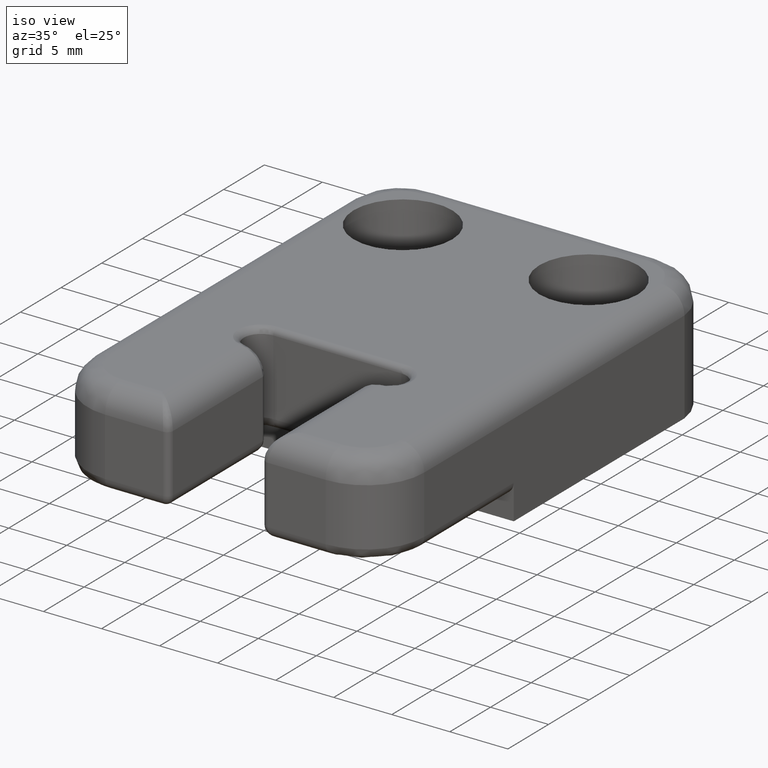
[diagram: clean part render]
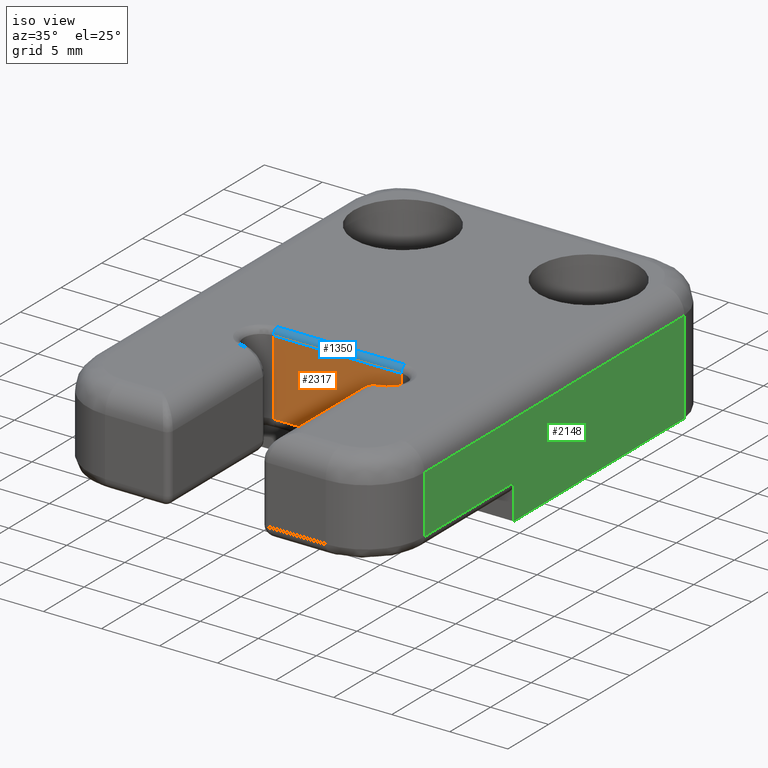
[diagram: same view with three faces highlighted in distinct colors, each labeled with its STEP entity id]
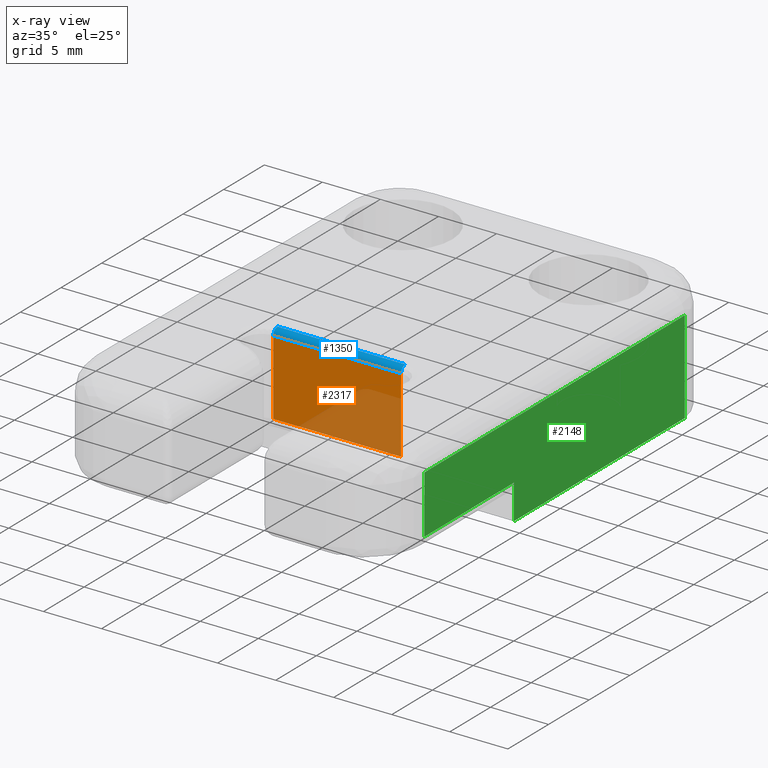
[diagram: x-ray of the same camera — body ghosted, the three highlighted faces saturated]
A machine part, iso view with three faces highlighted in distinct colors.
The next image is the same camera in x-ray (body ghosted, the three faces saturated) — at least one of them is partly hidden behind the body in this view.
Their STEP definitions:

[orange] entity #2317 — the highlighted planar face has unit normal (0, -1, 0).
#1306=CARTESIAN_POINT('',(5.499999999994543,-1.003970467848149,9.500000000000000));
#1307=VERTEX_POINT('',#1306);
#1333=CARTESIAN_POINT('',(-5.500000000004548,-1.003970467848262,9.500000000000000));
#1334=VERTEX_POINT('',#1333);
#1342=CARTESIAN_POINT('',(-5.500000000004548,-1.003970467848262,9.500000000000000));
#1343=DIRECTION('',(1.0,0.0,0.0));
#1344=VECTOR('',#1343,10.999999999999091);
#1345=LINE('',#1342,#1344);
#1346=EDGE_CURVE('',#1334,#1307,#1345,.T.);
#2276=CARTESIAN_POINT('',(-5.500000000004548,-1.003970467848262,3.000000000000910));
#2277=VERTEX_POINT('',#2276);
#2285=CARTESIAN_POINT('',(-5.500000000004548,-1.003970467848262,3.000000000000910));
#2286=DIRECTION('',(0.0,0.0,1.0));
#2287=VECTOR('',#2286,6.499999999999091);
#2288=LINE('',#2285,#2287);
#2289=EDGE_CURVE('',#2277,#1334,#2288,.T.);
#2294=CARTESIAN_POINT('',(-5.500000000004548,-1.003970467848262,0.0));
#2295=DIRECTION('',(0.0,-1.0,0.0));
#2296=DIRECTION('',(1.0,0.0,0.0));
#2297=AXIS2_PLACEMENT_3D('',#2294,#2295,#2296);
#2298=PLANE('',#2297);
#2299=ORIENTED_EDGE('',*,*,#1346,.F.);
#2300=ORIENTED_EDGE('',*,*,#2289,.F.);
#2301=CARTESIAN_POINT('',(5.499999999994543,-1.003970467848149,3.000000000000910));
#2302=VERTEX_POINT('',#2301);
#2303=CARTESIAN_POINT('',(-5.500000000004548,-1.003970467848262,3.000000000000910));
#2304=DIRECTION('',(1.0,0.0,0.0));
#2305=VECTOR('',#2304,10.999999999999091);
#2306=LINE('',#2303,#2305);
#2307=EDGE_CURVE('',#2277,#2302,#2306,.T.);
#2308=ORIENTED_EDGE('',*,*,#2307,.T.);
#2309=CARTESIAN_POINT('',(5.499999999994543,-1.003970467848149,3.000000000000910));
#2310=DIRECTION('',(0.0,0.0,1.0));
#2311=VECTOR('',#2310,6.499999999999091);
#2312=LINE('',#2309,#2311);
#2313=EDGE_CURVE('',#2302,#1307,#2312,.T.);
#2314=ORIENTED_EDGE('',*,*,#2313,.T.);
#2315=EDGE_LOOP('',(#2299,#2300,#2308,#2314));
#2316=FACE_OUTER_BOUND('',#2315,.T.);
#2317=ADVANCED_FACE('',(#2316),#2298,.T.);

[blue] entity #1350 — the highlighted cylindrical surface (edge-blend (fillet) strip) has radius 0.5 mm, axis along (-1, 0, 0).
#945=CARTESIAN_POINT('',(-5.500000000004548,-0.503970467848262,10.0));
#946=VERTEX_POINT('',#945);
#954=CARTESIAN_POINT('',(5.499999999994543,-0.503970467848148,10.0));
#955=VERTEX_POINT('',#954);
#956=CARTESIAN_POINT('',(-5.500000000004548,-0.503970467848262,10.0));
#957=DIRECTION('',(1.0,0.0,0.0));
#958=VECTOR('',#957,10.999999999999091);
#959=LINE('',#956,#958);
#960=EDGE_CURVE('',#946,#955,#959,.T.);
#1306=CARTESIAN_POINT('',(5.499999999994543,-1.003970467848149,9.500000000000000));
#1307=VERTEX_POINT('',#1306);
#1308=CARTESIAN_POINT('',(5.499999999994543,-0.503970467848262,9.500000000000000));
#1309=DIRECTION('',(1.0,0.0,0.0));
#1310=DIRECTION('',(0.0,-1.0,0.0));
#1311=AXIS2_PLACEMENT_3D('',#1308,#1309,#1310);
#1312=CIRCLE('',#1311,0.500000000000000);
#1313=EDGE_CURVE('',#955,#1307,#1312,.T.);
#1326=CARTESIAN_POINT('',(-5.500000000004548,-0.503970467848262,9.500000000000000));
#1327=DIRECTION('',(-1.0,0.0,0.0));
#1328=DIRECTION('',(0.0,-1.0,0.0));
#1329=AXIS2_PLACEMENT_3D('',#1326,#1327,#1328);
#1330=CYLINDRICAL_SURFACE('',#1329,0.500000000000000);
#1331=ORIENTED_EDGE('',*,*,#1313,.F.);
#1332=ORIENTED_EDGE('',*,*,#960,.F.);
#1333=CARTESIAN_POINT('',(-5.500000000004548,-1.003970467848262,9.500000000000000));
#1334=VERTEX_POINT('',#1333);
#1335=CARTESIAN_POINT('',(-5.500000000004548,-0.503970467848262,9.500000000000000));
#1336=DIRECTION('',(-1.0,0.0,0.0));
#1337=DIRECTION('',(0.0,-1.0,0.0));
#1338=AXIS2_PLACEMENT_3D('',#1335,#1336,#1337);
#1339=CIRCLE('',#1338,0.500000000000000);
#1340=EDGE_CURVE('',#1334,#946,#1339,.T.);
#1341=ORIENTED_EDGE('',*,*,#1340,.F.);
#1342=CARTESIAN_POINT('',(-5.500000000004548,-1.003970467848262,9.500000000000000));
#1343=DIRECTION('',(1.0,0.0,0.0));
#1344=VECTOR('',#1343,10.999999999999091);
#1345=LINE('',#1342,#1344);
#1346=EDGE_CURVE('',#1334,#1307,#1345,.T.);
#1347=ORIENTED_EDGE('',*,*,#1346,.T.);
#1348=EDGE_LOOP('',(#1331,#1332,#1341,#1347));
#1349=FACE_OUTER_BOUND('',#1348,.T.);
#1350=ADVANCED_FACE('',(#1349),#1330,.T.);

[green] entity #2148 — the highlighted planar face has unit normal (1, 0, 0).
#7=CARTESIAN_POINT('',(14.500000000004547,0.0,0.0));
#8=VERTEX_POINT('',#7);
#9=CARTESIAN_POINT('',(14.500000000006366,20.996029532087960,0.0));
#10=VERTEX_POINT('',#9);
#11=CARTESIAN_POINT('',(14.500000000004547,0.0,0.0));
#12=DIRECTION('',(0.0,1.0,0.0));
#13=VECTOR('',#12,20.996029532087789);
#14=LINE('',#11,#13);
#15=EDGE_CURVE('',#8,#10,#14,.T.);
#335=CARTESIAN_POINT('',(14.500000000006366,20.996029532087960,8.0));
#336=VERTEX_POINT('',#335);
#357=CARTESIAN_POINT('',(14.500000000004547,-11.003970467914655,8.0));
#358=VERTEX_POINT('',#357);
#366=CARTESIAN_POINT('',(14.500000000004547,-11.003970467914655,8.0));
#367=DIRECTION('',(0.0,1.0,0.0));
#368=VECTOR('',#367,32.000000000002444);
#369=LINE('',#366,#368);
#370=EDGE_CURVE('',#358,#336,#369,.T.);
#491=CARTESIAN_POINT('',(14.500000000006366,20.996029532087960,0.0));
#492=DIRECTION('',(0.0,0.0,1.0));
#493=VECTOR('',#492,8.0);
#494=LINE('',#491,#493);
#495=EDGE_CURVE('',#10,#336,#494,.T.);
#2021=CARTESIAN_POINT('',(14.500000000004547,0.0,3.000000000000910));
#2022=VERTEX_POINT('',#2021);
#2023=CARTESIAN_POINT('',(14.500000000004547,0.0,0.0));
#2024=DIRECTION('',(0.0,0.0,1.0));
#2025=VECTOR('',#2024,3.000000000000910);
#2026=LINE('',#2023,#2025);
#2027=EDGE_CURVE('',#8,#2022,#2026,.T.);
#2103=CARTESIAN_POINT('',(14.500000000004547,-11.003970467914655,3.000000000000910));
#2104=VERTEX_POINT('',#2103);
#2121=CARTESIAN_POINT('',(14.500000000004547,-11.003970467914655,3.000000000000910));
#2122=DIRECTION('',(0.0,1.0,0.0));
#2123=VECTOR('',#2122,11.003970467914655);
#2124=LINE('',#2121,#2123);
#2125=EDGE_CURVE('',#2104,#2022,#2124,.T.);
#2130=CARTESIAN_POINT('',(14.500000000004547,-11.003970467914655,0.0));
#2131=DIRECTION('',(1.0,0.0,0.0));
#2132=DIRECTION('',(0.0,1.0,0.0));
#2133=AXIS2_PLACEMENT_3D('',#2130,#2131,#2132);
#2134=PLANE('',#2133);
#2135=ORIENTED_EDGE('',*,*,#2027,.F.);
#2136=ORIENTED_EDGE('',*,*,#15,.T.);
#2137=ORIENTED_EDGE('',*,*,#495,.T.);
#2138=ORIENTED_EDGE('',*,*,#370,.F.);
#2139=CARTESIAN_POINT('',(14.500000000004547,-11.003970467914655,3.000000000000910));
#2140=DIRECTION('',(0.0,0.0,1.0));
#2141=VECTOR('',#2140,4.999999999999091);
#2142=LINE('',#2139,#2141);
#2143=EDGE_CURVE('',#2104,#358,#2142,.T.);
#2144=ORIENTED_EDGE('',*,*,#2143,.F.);
#2145=ORIENTED_EDGE('',*,*,#2125,.T.);
#2146=EDGE_LOOP('',(#2135,#2136,#2137,#2138,#2144,#2145));
#2147=FACE_OUTER_BOUND('',#2146,.T.);
#2148=ADVANCED_FACE('',(#2147),#2134,.T.);